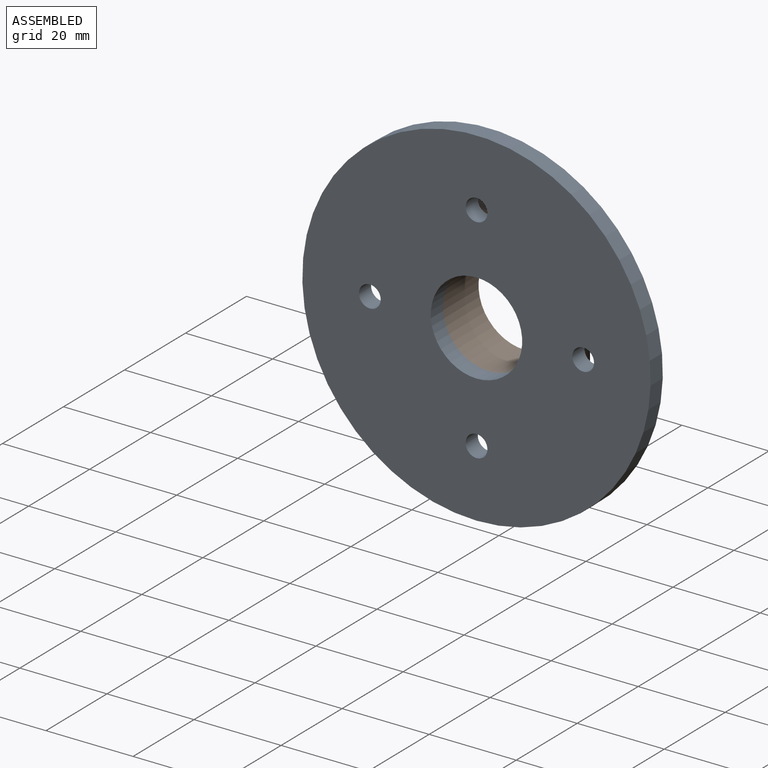
[diagram: assembled view]
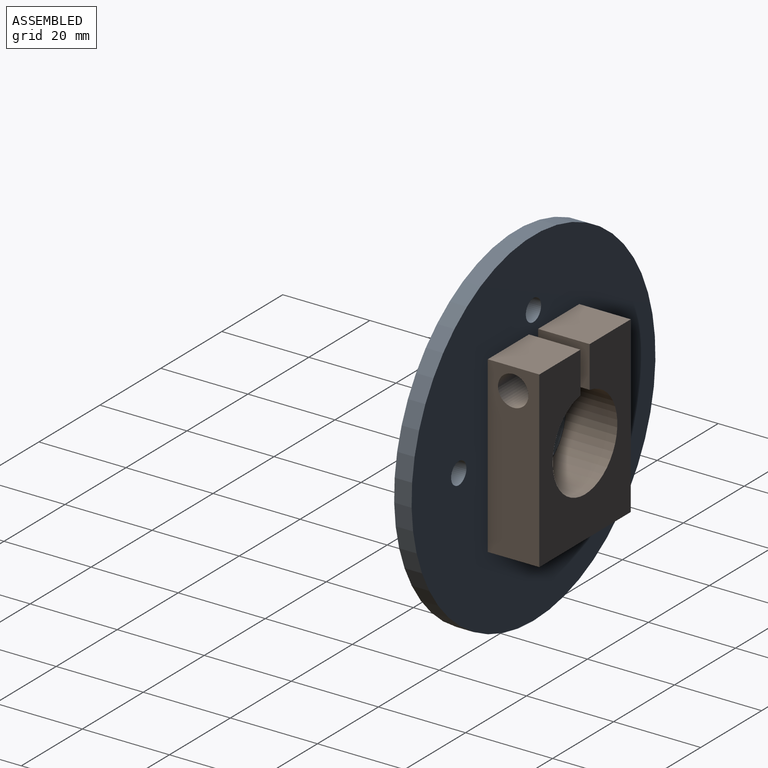
[diagram: assembled view, second angle]
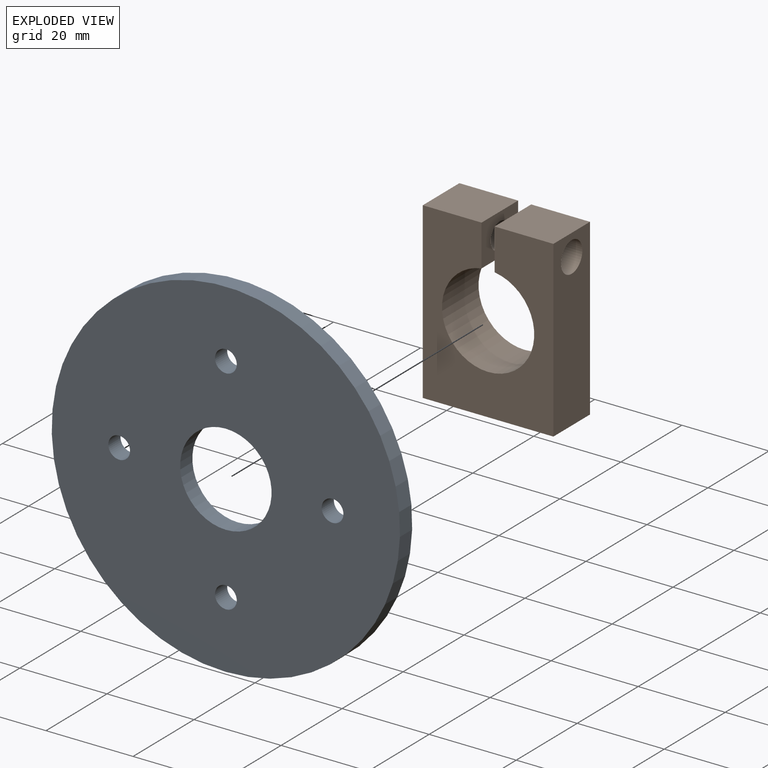
[diagram: exploded view]
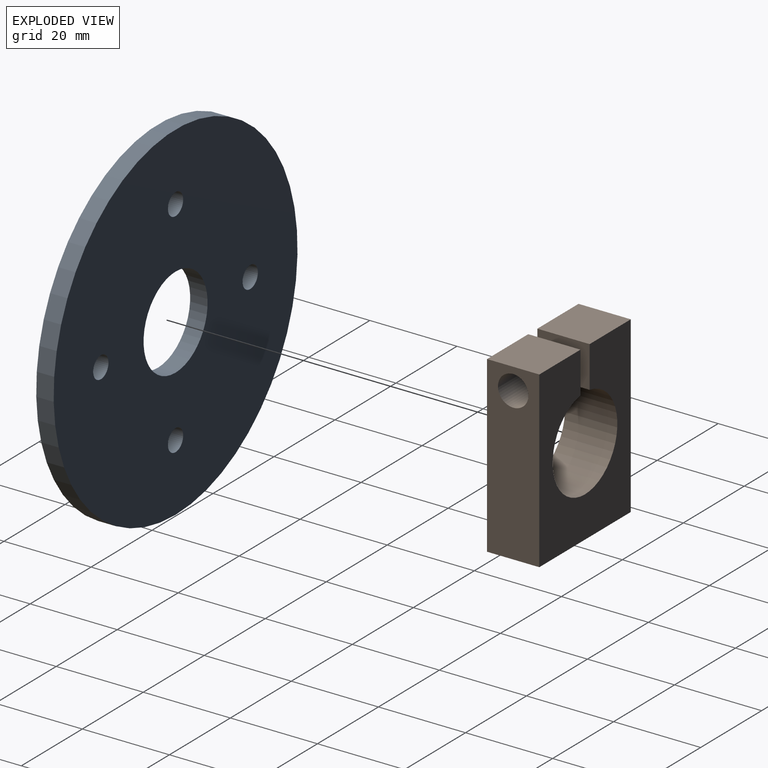
[diagram: exploded view, second angle]
ASSEMBLY  parts=2 mates=2
PART A: 8 faces, bbox 80x4x80 mm
  f0: cylinder r=10.5mm len=21mm, axis (0,1,0), area 263.9mm2, adj f6,f7
  f1: cylinder r=2.5mm len=5mm, axis (0,1,0), area 62.8mm2, adj f6,f7
  f2: cylinder r=2.5mm len=5mm, axis (0,1,0), area 62.8mm2, adj f6,f7
  f3: cylinder r=2.5mm len=5mm, axis (0,1,0), area 62.8mm2, adj f6,f7
  f4: cylinder r=2.5mm len=5mm, axis (0,1,0), area 62.8mm2, adj f6,f7
  f5: cylinder r=40mm len=80mm, axis (0,1,0), area 1005.3mm2, adj f6,f7
  f6: plane 80x80mm, normal (0,-1,0), area 4601.6mm2, adj f0,f1,f2,f3,f4,f5
  f7: plane 80x80mm, normal (0,1,0), area 4601.6mm2, adj f0,f1,f2,f3,f4,f5
PART B: 12 faces, bbox 30x12x40 mm
  f0: plane 40x12mm, normal (1,0,0), area 441.5mm2, adj f1,f7,f8,f9,f10
  f1: plane 13.5x12mm, normal (0,0,1), area 162mm2, adj f0,f2,f8,f9
  f2: plane 12x9.51mm, normal (-1,0,0), area 75.6mm2, adj f1,f3,f8,f9,f10
  f3: cylinder r=10.6mm len=21.2mm, axis (0,1,0), area 763.1mm2, adj f2,f4,f8,f9
  f4: plane 12x9.51mm, normal (1,0,0), area 85.8mm2, adj f3,f5,f8,f9,f11
  f5: plane 13.5x12mm, normal (0,0,1), area 162mm2, adj f4,f6,f8,f9
  f6: plane 40x12mm, normal (-1,0,0), area 451.7mm2, adj f5,f7,f8,f9,f11
  f7: plane 30x12mm, normal (0,0,-1), area 360mm2, adj f0,f6,f8,f9
  f8: plane 40x30mm, normal (0,-1,0), area 818.7mm2, adj f0,f1,f2,f3,f4,f5,f6,f7
  f9: plane 40x30mm, normal (0,1,0), area 818.7mm2, adj f0,f1,f2,f3,f4,f5,f6,f7
  f10: cylinder r=3.5mm len=13.5mm, axis (1,0,0), area 296.9mm2, adj f0,f2
  f11: cylinder r=3mm len=13.5mm, axis (-1,0,0), area 254.4mm2, adj f4,f6
PLACE A t=(-5.15,4.01,-1.33)mm
PLACE B t=(-5.16,15.84,-1.33)mm
MATE parallel B.f8 <-> A.f5  axis (0,-1,0) through (-5.16,3.84,-1.85)mm
MATE parallel A.f0 <-> B.f3  axis (0,1,0) through (-5.15,4.01,-1.33)mm
